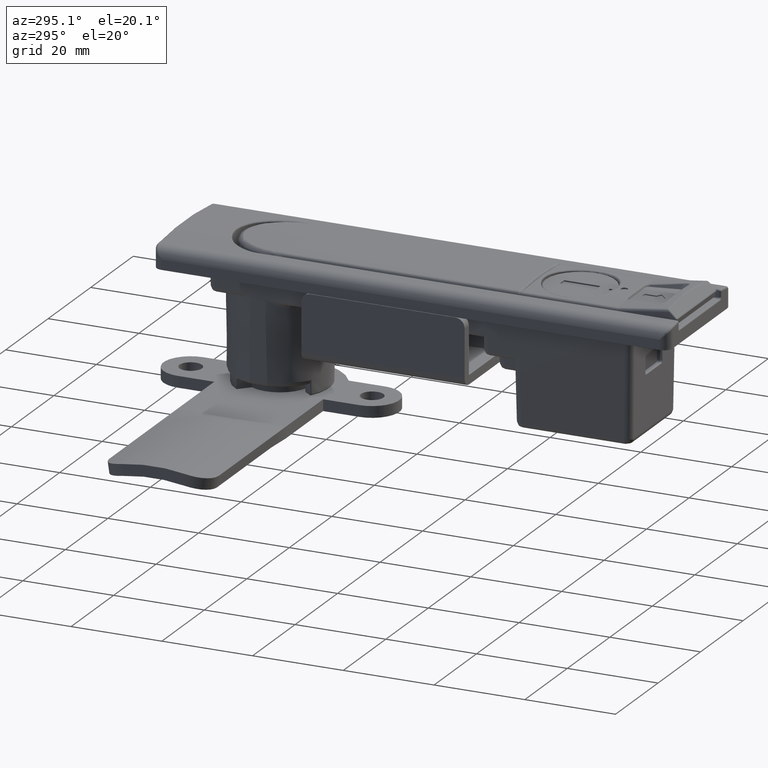
[diagram: clean part render]
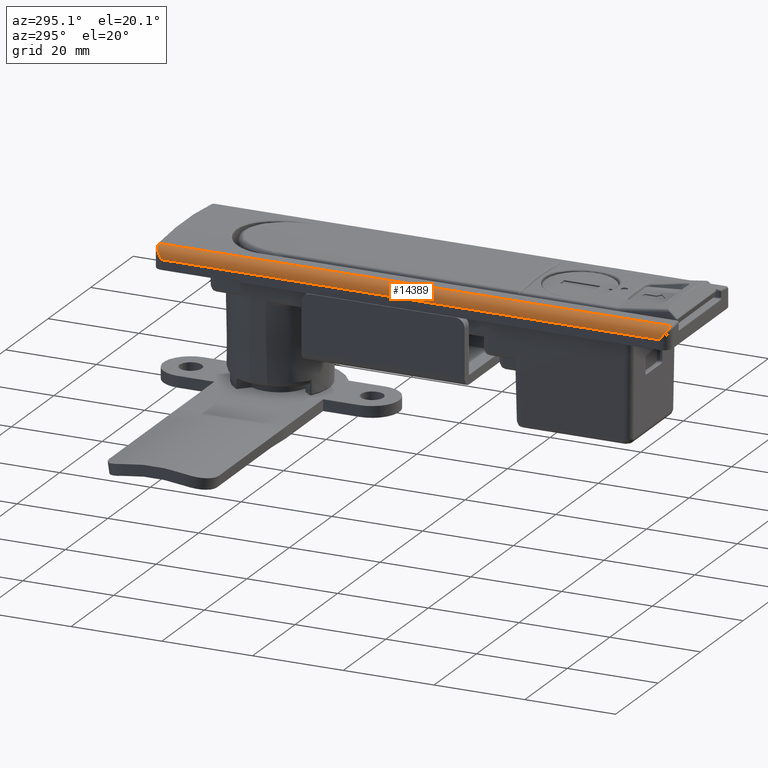
[diagram: same view with one face highlighted and labeled with its STEP entity id]
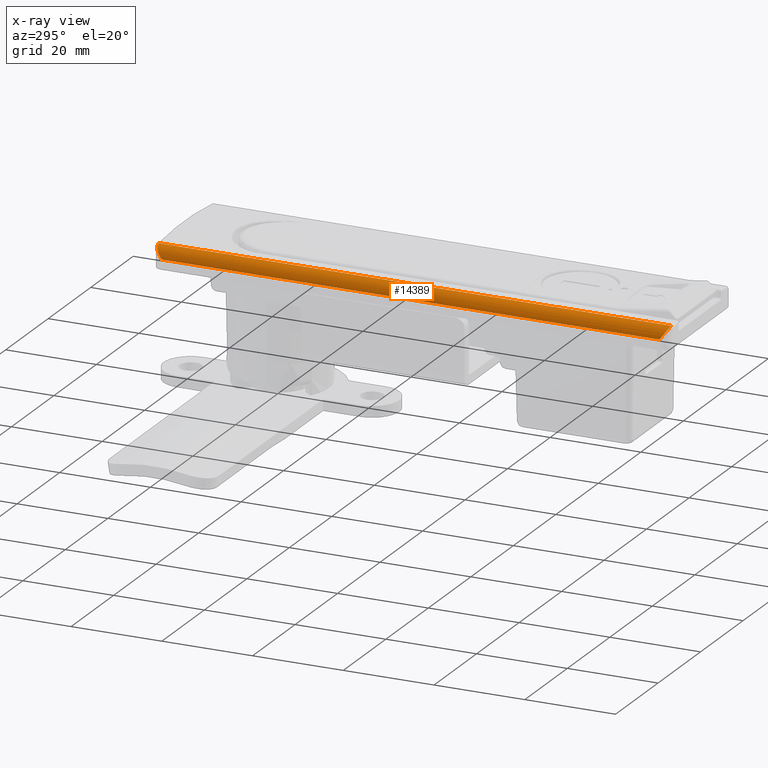
[diagram: x-ray of the same camera — body ghosted, the highlighted face saturated]
A machine part, auxiliary view. The second image highlights one B-rep face of the part: STEP entity #14389.
The next image is the same camera in x-ray: the body ghosted, the highlighted face saturated — about 0% of this face is hidden behind the body in this view.
In plain terms, the highlighted cylindrical surface (edge-blend (fillet) strip) has radius 2.5 mm, axis along (0, 1, 0).
Its self-contained STEP definition (entity closure, byte-faithful):
#902=LINE('',#32298,#1822);
#932=LINE('',#32889,#1852);
#1822=VECTOR('',#17603,112.9);
#1852=VECTOR('',#17669,109.7);
#3077=FACE_OUTER_BOUND('',#3966,.T.);
#3966=EDGE_LOOP('',(#10823,#10824,#10825,#10826,#10827,#10828));
#4834=B_SPLINE_CURVE_WITH_KNOTS('',3,(#34519,#34520,#34521,#34522,#34523,
#34524,#34525,#34526,#34527,#34528,#34529,#34530,#34531,#34532,#34533,#34534,
#34535,#34536,#34537,#34538,#34539,#34540,#34541,#34542,#34543,#34544,#34545,
#34546,#34547,#34548,#34549,#34550,#34551,#34552,#34553,#34554,#34555,#34556,
#34557,#34558,#34559,#34560,#34561,#34562,#34563,#34564,#34565,#34566,#34567,
#34568,#34569,#34570,#34571,#34572,#34573,#34574,#34575,#34576,#34577,#34578,
#34579,#34580,#34581,#34582,#34583,#34584,#34585,#34586,#34587,#34588,#34589,
#34590,#34591,#34592,#34593,#34594),.UNSPECIFIED.,.F.,.F.,(4,3,3,3,3,3,
3,3,3,3,3,3,3,3,3,3,3,3,3,3,3,3,3,3,3,4),(0.,0.00267370429320082,0.0240881914682983,
0.0402317062031808,0.0891005600119061,0.10557197990381,0.179817606021119,
0.251578206831171,0.321912649458424,0.390348559463211,0.4336203091795,0.490366192962288,
0.552950008769689,0.615295061211902,0.673192660037926,0.677640113654115,
0.730620784419323,0.741658888262447,0.785493167535257,0.791408199901041,
0.836676604003529,0.879040479210817,0.882695041605656,0.925146933530889,
0.971001925840205,1.),.UNSPECIFIED.);
#4835=B_SPLINE_CURVE_WITH_KNOTS('',3,(#34598,#34599,#34600,#34601,#34602,
#34603,#34604,#34605,#34606,#34607,#34608,#34609,#34610,#34611,#34612,#34613,
#34614,#34615,#34616,#34617,#34618,#34619,#34620,#34621,#34622,#34623,#34624,
#34625,#34626,#34627,#34628,#34629,#34630,#34631,#34632,#34633,#34634,#34635,
#34636,#34637,#34638,#34639,#34640,#34641,#34642,#34643,#34644,#34645),
 .UNSPECIFIED.,.F.,.F.,(4,2,2,2,2,2,2,2,2,2,2,2,2,2,2,2,2,2,2,2,2,2,2,4),
(0.,0.0435240448979831,0.087985727388374,0.134096158534161,0.163323395996471,
0.213072707634083,0.258341111737562,0.311321782503609,0.322359886345886,
0.380813182940636,0.440998701552375,0.504229142477239,0.509633807037755,
0.566379690820505,0.634495720763186,0.704754598943767,0.776384839230557,
0.850204024905983,0.8944280200962,0.943217987665729,0.973275863220895,0.989062535666995,
0.997326295706803,1.),.UNSPECIFIED.);
#5304=CIRCLE('',#15522,2.5);
#5305=CIRCLE('',#15523,2.5);
#6194=VERTEX_POINT('',#32296);
#6195=VERTEX_POINT('',#32297);
#6231=VERTEX_POINT('',#32886);
#6232=VERTEX_POINT('',#32888);
#6254=VERTEX_POINT('',#34518);
#6255=VERTEX_POINT('',#34596);
#7793=EDGE_CURVE('',#6194,#6195,#902,.T.);
#7844=EDGE_CURVE('',#6231,#6232,#932,.T.);
#7929=EDGE_CURVE('',#6231,#6254,#4834,.T.);
#7930=EDGE_CURVE('',#6254,#6195,#5304,.T.);
#7931=EDGE_CURVE('',#6194,#6255,#5305,.T.);
#7932=EDGE_CURVE('',#6255,#6232,#4835,.T.);
#10823=ORIENTED_EDGE('',*,*,#7844,.F.);
#10824=ORIENTED_EDGE('',*,*,#7929,.T.);
#10825=ORIENTED_EDGE('',*,*,#7930,.T.);
#10826=ORIENTED_EDGE('',*,*,#7793,.F.);
#10827=ORIENTED_EDGE('',*,*,#7931,.T.);
#10828=ORIENTED_EDGE('',*,*,#7932,.T.);
#13938=CYLINDRICAL_SURFACE('',#15521,2.5);
#14389=ADVANCED_FACE('',(#3077),#13938,.T.);
#15521=AXIS2_PLACEMENT_3D('',#34517,#17855,#17856);
#15522=AXIS2_PLACEMENT_3D('',#34595,#17857,#17858);
#15523=AXIS2_PLACEMENT_3D('',#34597,#17859,#17860);
#17603=DIRECTION('',(-1.,0.,0.));
#17669=DIRECTION('',(1.,0.,0.));
#17855=DIRECTION('center_axis',(1.,0.,0.));
#17856=DIRECTION('ref_axis',(0.,0.,-1.));
#17857=DIRECTION('center_axis',(1.,-6.11356291093148E-16,0.));
#17858=DIRECTION('ref_axis',(-6.11356291093148E-16,-1.,0.));
#17859=DIRECTION('center_axis',(-1.,6.11356291093148E-16,0.));
#17860=DIRECTION('ref_axis',(-6.11356291093148E-16,-1.,0.));
#32296=CARTESIAN_POINT('',(170.9,-112.637209302326,-7.0216840771168));
#32297=CARTESIAN_POINT('',(57.9999999999999,-112.637209302326,-7.0216840771168));
#32298=CARTESIAN_POINT('',(186.4,-112.637209302326,-7.0216840771168));
#32886=CARTESIAN_POINT('',(59.5999999999999,-114.85,-4.53823671172775));
#32888=CARTESIAN_POINT('',(169.3,-114.85,-4.53823671172775));
#32889=CARTESIAN_POINT('',(60.0999999999999,-114.85,-4.53823671172775));
#34517=CARTESIAN_POINT('Origin',(186.4,-112.35,-4.53823671172775));
#34518=CARTESIAN_POINT('',(57.9999999999999,-112.945238095238,-6.96634124201003));
#34519=CARTESIAN_POINT('Ctrl Pts',(59.5999999999999,-114.85,-4.53823671172775));
#34520=CARTESIAN_POINT('Ctrl Pts',(59.5980272529535,-114.85,-4.54092726718884));
#34521=CARTESIAN_POINT('Ctrl Pts',(59.5960544832535,-114.849995827485,-4.54361780671556));
#34522=CARTESIAN_POINT('Ctrl Pts',(59.5940681339467,-114.849987362945,-4.54632682262408));
#34523=CARTESIAN_POINT('Ctrl Pts',(59.57815887582,-114.849919567945,-4.56802413095302));
#34524=CARTESIAN_POINT('Ctrl Pts',(59.5622356489565,-114.849578618219,-4.58973766165629));
#34525=CARTESIAN_POINT('Ctrl Pts',(59.5463239644371,-114.848962643325,-4.61143472638073));
#34526=CARTESIAN_POINT('Ctrl Pts',(59.5343287897968,-114.848498284796,-4.62779126488751));
#34527=CARTESIAN_POINT('Ctrl Pts',(59.522335418008,-114.847877553511,-4.64414493647131));
#34528=CARTESIAN_POINT('Ctrl Pts',(59.5103488637793,-114.847099808663,-4.66048985344404));
#34529=CARTESIAN_POINT('Ctrl Pts',(59.4740637563605,-114.84474545771,-4.70996838220148));
#34530=CARTESIAN_POINT('Ctrl Pts',(59.4378496017041,-114.840948790734,-4.7593551101302));
#34531=CARTESIAN_POINT('Ctrl Pts',(59.401922345036,-114.835728804778,-4.8083828725898));
#34532=CARTESIAN_POINT('Ctrl Pts',(59.3898129361994,-114.833969390062,-4.82490785320411));
#34533=CARTESIAN_POINT('Ctrl Pts',(59.3777360895393,-114.832048710493,-4.84139209473129));
#34534=CARTESIAN_POINT('Ctrl Pts',(59.3656999391871,-114.829968817281,-4.85782551802807));
#34535=CARTESIAN_POINT('Ctrl Pts',(59.3114464792665,-114.820593610117,-4.9318998728759));
#34536=CARTESIAN_POINT('Ctrl Pts',(59.2572501848385,-114.807847430497,-5.00599277299397));
#34537=CARTESIAN_POINT('Ctrl Pts',(59.203429345917,-114.79161374616,-5.07976881509389));
#34538=CARTESIAN_POINT('Ctrl Pts',(59.1514099080178,-114.775923408529,-5.15107554901668));
#34539=CARTESIAN_POINT('Ctrl Pts',(59.0997417741421,-114.756975056744,-5.22208589651868));
#34540=CARTESIAN_POINT('Ctrl Pts',(59.0487063227313,-114.734711540459,-5.29249787804033));
#34541=CARTESIAN_POINT('Ctrl Pts',(58.9986851413492,-114.712890485574,-5.36151050361344));
#34542=CARTESIAN_POINT('Ctrl Pts',(58.9492720449835,-114.687884684689,-5.42994778225832));
#34543=CARTESIAN_POINT('Ctrl Pts',(58.9007199292241,-114.659688292234,-5.49753306866611));
#34544=CARTESIAN_POINT('Ctrl Pts',(58.8534783772825,-114.632253003002,-5.56329403023032));
#34545=CARTESIAN_POINT('Ctrl Pts',(58.807052104413,-114.601797198214,-5.62824797570349));
#34546=CARTESIAN_POINT('Ctrl Pts',(58.7616594834193,-114.56836035014,-5.69215436637959));
#34547=CARTESIAN_POINT('Ctrl Pts',(58.7329579123513,-114.54721836604,-5.73256211930366));
#34548=CARTESIAN_POINT('Ctrl Pts',(58.7046693029682,-114.52488545019,-5.77255138732803));
#34549=CARTESIAN_POINT('Ctrl Pts',(58.6768452428913,-114.501380828538,-5.81206526850061));
#34550=CARTESIAN_POINT('Ctrl Pts',(58.640357213407,-114.470557241848,-5.86388314329254));
#34551=CARTESIAN_POINT('Ctrl Pts',(58.6045100209587,-114.437567533477,-5.91513603378572));
#34552=CARTESIAN_POINT('Ctrl Pts',(58.5694358854954,-114.402416286536,-5.96567752803336));
#34553=CARTESIAN_POINT('Ctrl Pts',(58.5307533752037,-114.363648731653,-6.02141865594905));
#34554=CARTESIAN_POINT('Ctrl Pts',(58.4930296035966,-114.322131407132,-6.07628175924436));
#34555=CARTESIAN_POINT('Ctrl Pts',(58.456636365241,-114.277902416746,-6.12987489888462));
#34556=CARTESIAN_POINT('Ctrl Pts',(58.4203819706415,-114.233842164275,-6.18326357546672));
#34557=CARTESIAN_POINT('Ctrl Pts',(58.3854486351659,-114.187090876401,-6.23539123247734));
#34558=CARTESIAN_POINT('Ctrl Pts',(58.3521748372599,-114.137725229134,-6.28589410084648));
#34559=CARTESIAN_POINT('Ctrl Pts',(58.3212746627133,-114.091881135187,-6.33279429096357));
#34560=CARTESIAN_POINT('Ctrl Pts',(58.2918058049238,-114.043782812845,-6.37829302882148));
#34561=CARTESIAN_POINT('Ctrl Pts',(58.2640094967814,-113.993521571078,-6.422125522172));
#34562=CARTESIAN_POINT('Ctrl Pts',(58.2618742995768,-113.989660710767,-6.42549255267087));
#34563=CARTESIAN_POINT('Ctrl Pts',(58.2597489555778,-113.985787101553,-6.42884976586151));
#34564=CARTESIAN_POINT('Ctrl Pts',(58.2576335659774,-113.981900791664,-6.432197049244));
#34565=CARTESIAN_POINT('Ctrl Pts',(58.2324338068271,-113.935604793441,-6.47207184820756));
#34566=CARTESIAN_POINT('Ctrl Pts',(58.208526953352,-113.887274823528,-6.51073240622743));
#34567=CARTESIAN_POINT('Ctrl Pts',(58.186145977037,-113.836996875816,-6.54792592667428));
#34568=CARTESIAN_POINT('Ctrl Pts',(58.181483077585,-113.826521862951,-6.55567490257537));
#34569=CARTESIAN_POINT('Ctrl Pts',(58.176886318816,-113.815962421069,-6.56336028876269));
#34570=CARTESIAN_POINT('Ctrl Pts',(58.1723576540513,-113.805319528359,-6.5709799469103));
#34571=CARTESIAN_POINT('Ctrl Pts',(58.1543735184738,-113.763054702988,-6.60123896856408));
#34572=CARTESIAN_POINT('Ctrl Pts',(58.1375041439123,-113.719378391574,-6.63041503100346));
#34573=CARTESIAN_POINT('Ctrl Pts',(58.1219156789442,-113.674528413277,-6.65833501864047));
#34574=CARTESIAN_POINT('Ctrl Pts',(58.119812159134,-113.66847632168,-6.66210256388736));
#34575=CARTESIAN_POINT('Ctrl Pts',(58.1177319633151,-113.662402867358,-6.66584727033726));
#34576=CARTESIAN_POINT('Ctrl Pts',(58.1156754998507,-113.656308643181,-6.66956874309612));
#34577=CARTESIAN_POINT('Ctrl Pts',(58.099937155008,-113.60966886411,-6.69804959024735));
#34578=CARTESIAN_POINT('Ctrl Pts',(58.0855887734124,-113.561812396578,-6.72516725276973));
#34579=CARTESIAN_POINT('Ctrl Pts',(58.0727873445654,-113.513012480188,-6.75075735715677));
#34580=CARTESIAN_POINT('Ctrl Pts',(58.0608072859593,-113.467343682954,-6.7747055393445));
#34581=CARTESIAN_POINT('Ctrl Pts',(58.0501124138764,-113.420495297319,-6.79750087350052));
#34582=CARTESIAN_POINT('Ctrl Pts',(58.0408636695733,-113.372687334121,-6.81895612741346));
#34583=CARTESIAN_POINT('Ctrl Pts',(58.0400658173239,-113.368563131989,-6.82080698651779));
#34584=CARTESIAN_POINT('Ctrl Pts',(58.0392787268071,-113.364431800595,-6.82264788562098));
#34585=CARTESIAN_POINT('Ctrl Pts',(58.0385025012853,-113.360293487892,-6.82447871181283));
#34586=CARTESIAN_POINT('Ctrl Pts',(58.0294857604558,-113.312222286841,-6.84574583691106));
#34587=CARTESIAN_POINT('Ctrl Pts',(58.0219354013807,-113.263208056025,-6.86565163608158));
#34588=CARTESIAN_POINT('Ctrl Pts',(58.0159853203384,-113.213487605786,-6.88403383703501));
#34589=CARTESIAN_POINT('Ctrl Pts',(58.0095582588329,-113.159781380695,-6.90388962308177));
#34590=CARTESIAN_POINT('Ctrl Pts',(58.0050003960741,-113.105252091181,-6.92196672604413));
#34591=CARTESIAN_POINT('Ctrl Pts',(58.0024400998958,-113.050207137935,-6.93809908876904));
#34592=CARTESIAN_POINT('Ctrl Pts',(58.0008210033763,-113.015397457332,-6.94830097578527));
#34593=CARTESIAN_POINT('Ctrl Pts',(57.9999999999999,-112.980381733932,-6.95772594876581));
#34594=CARTESIAN_POINT('Ctrl Pts',(57.9999999999999,-112.945238095238,-6.96634124201));
#34595=CARTESIAN_POINT('Origin',(57.9999999999999,-112.35,-4.53823671172775));
#34596=CARTESIAN_POINT('',(170.9,-112.945238095238,-6.96634124201003));
#34597=CARTESIAN_POINT('Origin',(170.9,-112.35,-4.53823671172775));
#34598=CARTESIAN_POINT('Ctrl Pts',(170.9,-112.945238095238,-6.96634124201003));
#34599=CARTESIAN_POINT('Ctrl Pts',(170.9,-112.99798619499,-6.95341030018588));
#34600=CARTESIAN_POINT('Ctrl Pts',(170.898148623133,-113.050446219782,-6.938653568873));
#34601=CARTESIAN_POINT('Ctrl Pts',(170.890833210253,-113.155379856602,-6.90536787345041));
#34602=CARTESIAN_POINT('Ctrl Pts',(170.885292373633,-113.207828879238,-6.88676466469276));
#34603=CARTESIAN_POINT('Ctrl Pts',(170.870513338538,-113.312928245467,-6.84556854742426));
#34604=CARTESIAN_POINT('Ctrl Pts',(170.861145859568,-113.365513179215,-6.82285351123496));
#34605=CARTESIAN_POINT('Ctrl Pts',(170.843131584739,-113.449436478081,-6.78325333796896));
#34606=CARTESIAN_POINT('Ctrl Pts',(170.835477557871,-113.481504783705,-6.76727961638582));
#34607=CARTESIAN_POINT('Ctrl Pts',(170.813143979736,-113.566642360239,-6.72263448901148));
#34608=CARTESIAN_POINT('Ctrl Pts',(170.797206595224,-113.619133231043,-6.69266582542129));
#34609=CARTESIAN_POINT('Ctrl Pts',(170.763598934409,-113.716518944465,-6.63232284481008));
#34610=CARTESIAN_POINT('Ctrl Pts',(170.746214867964,-113.761671925934,-6.60222895209003));
#34611=CARTESIAN_POINT('Ctrl Pts',(170.70590566904,-113.856403265452,-6.53440712557929));
#34612=CARTESIAN_POINT('Ctrl Pts',(170.682597976085,-113.905561529505,-6.49631788116699));
#34613=CARTESIAN_POINT('Ctrl Pts',(170.652810740539,-113.962521823059,-6.44875962285158));
#34614=CARTESIAN_POINT('Ctrl Pts',(170.647616602843,-113.972255391256,-6.4405046442625));
#34615=CARTESIAN_POINT('Ctrl Pts',(170.614563671318,-114.032978929699,-6.3882033872771));
#34616=CARTESIAN_POINT('Ctrl Pts',(170.585038531987,-114.081860714061,-6.34249182539675));
#34617=CARTESIAN_POINT('Ctrl Pts',(170.522116473849,-114.176420121281,-6.24677594867792));
#34618=CARTESIAN_POINT('Ctrl Pts',(170.488631083372,-114.221959641747,-6.19668498213264));
#34619=CARTESIAN_POINT('Ctrl Pts',(170.417376409351,-114.310211452573,-6.09148943430902));
#34620=CARTESIAN_POINT('Ctrl Pts',(170.379476527883,-114.352663855161,-6.03625994954788));
#34621=CARTESIAN_POINT('Ctrl Pts',(170.337238130727,-114.395699962452,-5.97529846677711));
#34622=CARTESIAN_POINT('Ctrl Pts',(170.3339046905,-114.399068366197,-5.97049126613122));
#34623=CARTESIAN_POINT('Ctrl Pts',(170.295489979047,-114.437567533478,-5.91513603378454));
#34624=CARTESIAN_POINT('Ctrl Pts',(170.259642769802,-114.470557298134,-5.86388304993799));
#34625=CARTESIAN_POINT('Ctrl Pts',(170.179354290371,-114.538380528129,-5.7498646672658));
#34626=CARTESIAN_POINT('Ctrl Pts',(170.134401436372,-114.572474355077,-5.68648555516045));
#34627=CARTESIAN_POINT('Ctrl Pts',(170.041155002686,-114.635695337338,-5.55579862307806));
#34628=CARTESIAN_POINT('Ctrl Pts',(169.992801077221,-114.664632360589,-5.48843018963995));
#34629=CARTESIAN_POINT('Ctrl Pts',(169.893605394342,-114.716634988439,-5.35086925985992));
#34630=CARTESIAN_POINT('Ctrl Pts',(169.842733885516,-114.739574975085,-5.28064767623835));
#34631=CARTESIAN_POINT('Ctrl Pts',(169.738379245775,-114.779482537038,-5.13708100280486));
#34632=CARTESIAN_POINT('Ctrl Pts',(169.684864279376,-114.796246160324,-5.06370647987271));
#34633=CARTESIAN_POINT('Ctrl Pts',(169.598899782935,-114.81760396816,-4.94608584139545));
#34634=CARTESIAN_POINT('Ctrl Pts',(169.566606550772,-114.824383644114,-4.90195550946308));
#34635=CARTESIAN_POINT('Ctrl Pts',(169.49864287315,-114.836129343285,-4.80915249596986));
#34636=CARTESIAN_POINT('Ctrl Pts',(169.462635119088,-114.84088961412,-4.76002697076328));
#34637=CARTESIAN_POINT('Ctrl Pts',(169.404210048399,-114.846260109997,-4.68034332836921));
#34638=CARTESIAN_POINT('Ctrl Pts',(169.381882771795,-114.847763011144,-4.64989803705412));
#34639=CARTESIAN_POINT('Ctrl Pts',(169.347822449631,-114.849226701647,-4.60345311669254));
#34640=CARTESIAN_POINT('Ctrl Pts',(169.336087932059,-114.84958119938,-4.58745173692376));
#34641=CARTESIAN_POINT('Ctrl Pts',(169.318212571724,-114.849894392313,-4.56307504204691));
#34642=CARTESIAN_POINT('Ctrl Pts',(169.312071180443,-114.849961201138,-4.55469972312078));
#34643=CARTESIAN_POINT('Ctrl Pts',(169.303945516746,-114.849995827485,-4.54361780671589));
#34644=CARTESIAN_POINT('Ctrl Pts',(169.301972747046,-114.85,-4.54092726718883));
#34645=CARTESIAN_POINT('Ctrl Pts',(169.3,-114.85,-4.53823671172775));